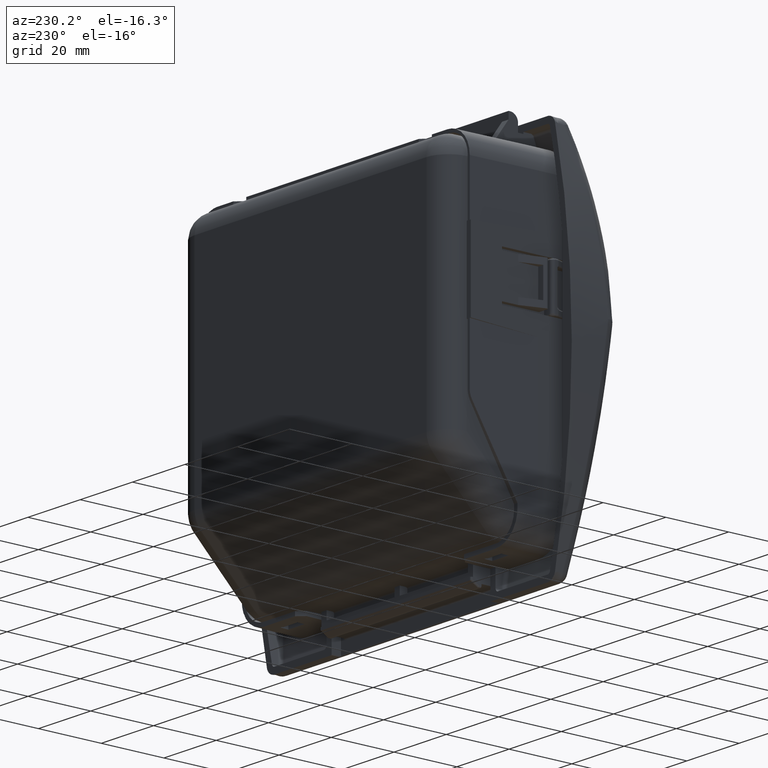
[diagram: clean part render]
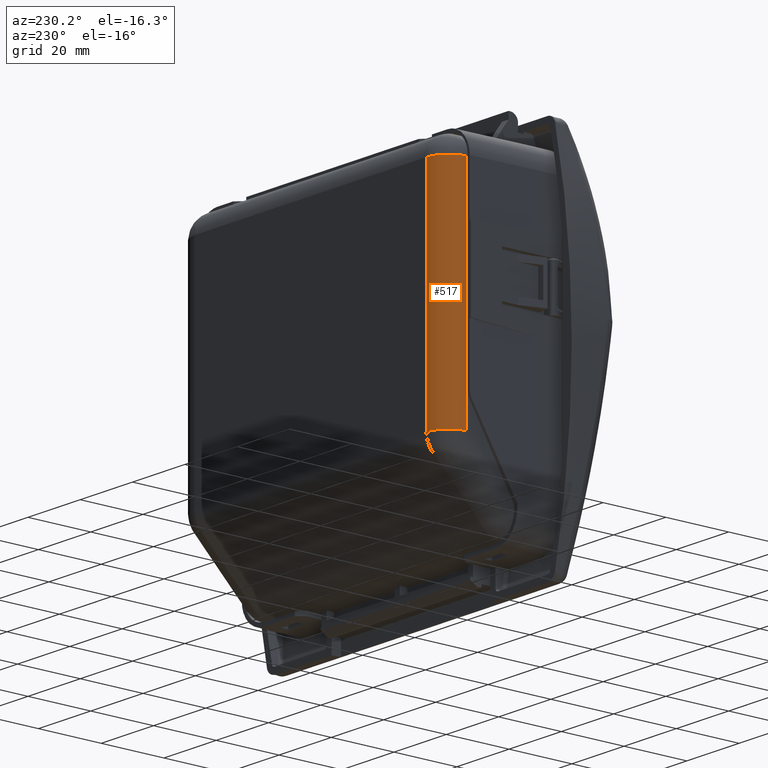
[diagram: same view with one face highlighted and labeled with its STEP entity id]
A machine part, auxiliary view. The second image highlights one B-rep face of the part: STEP entity #517.
In plain terms, the highlighted cylindrical surface (edge-blend (fillet) strip) has radius 7 mm, axis along (0, -0, -1).
Its self-contained STEP definition (entity closure, byte-faithful):
#517=ADVANCED_FACE('',(#4543),#4542,.T.);
#4542=CYLINDRICAL_SURFACE('',#11814,7.00000000000E+00);
#4543=FACE_OUTER_BOUND('',#11815,.T.);
#11811=CARTESIAN_POINT('',(-2.42850344491E+02,2.50000000000E+01,-2.52986260639E+01));
#11812=DIRECTION('',(8.30231508555E-16,-2.53765264365E-16,-1.00000000000E+00));
#11813=DIRECTION('',(-1.91985399007E-09,-1.00000000000E+00,2.53765262771E-16));
#11814=AXIS2_PLACEMENT_3D('',#11811,#11812,#11813);
#11815=EDGE_LOOP('',(#18217,#18218,#18219,#18220));
#18217=ORIENTED_EDGE('',*,*,#20888,.T.);
#18218=ORIENTED_EDGE('',*,*,#20893,.F.);
#18219=ORIENTED_EDGE('',*,*,#20894,.F.);
#18220=ORIENTED_EDGE('',*,*,#20895,.F.);
#20888=EDGE_CURVE('',#28347,#28334,#28366,.T.);
#20893=EDGE_CURVE('',#28373,#28334,#28400,.T.);
#20894=EDGE_CURVE('',#28406,#28373,#28407,.T.);
#20895=EDGE_CURVE('',#28347,#28406,#28413,.T.);
#28334=VERTEX_POINT('',#38017);
#28347=VERTEX_POINT('',#38025);
#28366=CIRCLE('',#38039,7.00000000000E+00);
#28373=VERTEX_POINT('',#38041);
#28400=LINE('',#38058,#38059);
#28406=VERTEX_POINT('',#38061);
#28407=CIRCLE('',#38065,7.00000000000E+00);
#28413=LINE('',#38066,#38067);
#38017=CARTESIAN_POINT('',(-2.42850344491E+02,3.20000000000E+01,4.47999999995E+01));
#38025=CARTESIAN_POINT('',(-2.49850344491E+02,2.50000000000E+01,4.47999999995E+01));
#38036=CARTESIAN_POINT('',(-2.42850344491E+02,2.50000000000E+01,4.47999999995E+01));
#38037=DIRECTION('',(-2.03012210217E-15,0.00000000000E+00,-1.00000000000E+00));
#38038=DIRECTION('',(1.00000000000E+00,1.01506105109E-14,-2.03012210217E-15));
#38039=AXIS2_PLACEMENT_3D('',#38036,#38037,#38038);
#38041=CARTESIAN_POINT('',(-2.42850344491E+02,3.20000000000E+01,-2.52986260639E+01));
#38058=CARTESIAN_POINT('',(-2.42850344491E+02,3.20000000000E+01,-2.52986260639E+01));
#38059=VECTOR('',#38060,7.00986260634E+01);
#38060=DIRECTION('',(0.00000000000E+00,0.00000000000E+00,1.00000000000E+00));
#38061=CARTESIAN_POINT('',(-2.49850344491E+02,2.50000000000E+01,-2.52986260639E+01));
#38062=CARTESIAN_POINT('',(-2.42850344491E+02,2.50000000000E+01,-2.52986260639E+01));
#38063=DIRECTION('',(-0.00000000000E+00,0.00000000000E+00,-1.00000000000E+00));
#38064=DIRECTION('',(1.00000000000E+00,1.01506105109E-14,-0.00000000000E+00));
#38065=AXIS2_PLACEMENT_3D('',#38062,#38063,#38064);
#38066=CARTESIAN_POINT('',(-2.49850344491E+02,2.50000000000E+01,4.47999999995E+01));
#38067=VECTOR('',#38068,7.00986260634E+01);
#38068=DIRECTION('',(0.00000000000E+00,0.00000000000E+00,-1.00000000000E+00));